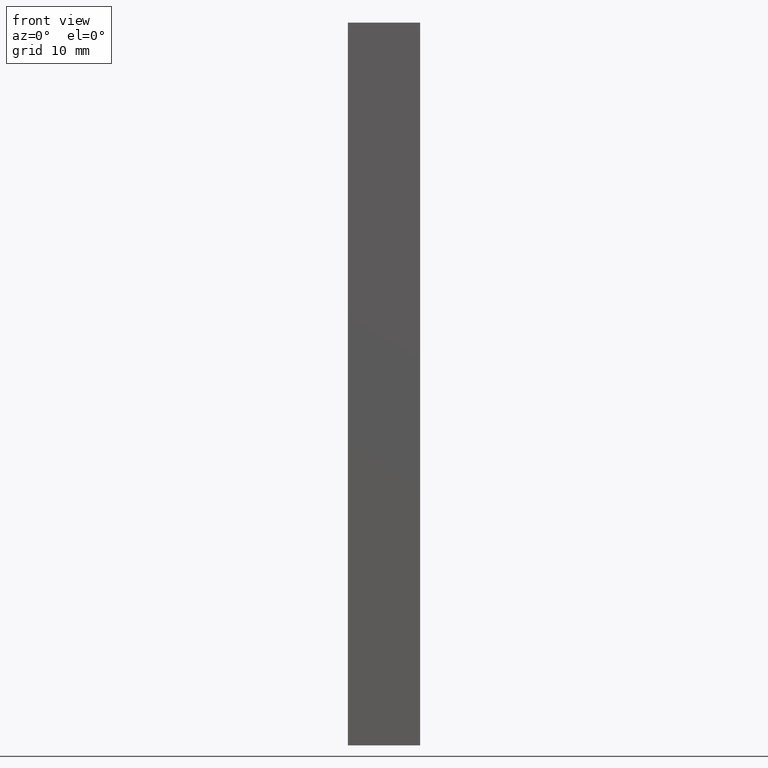
[diagram: clean part render]
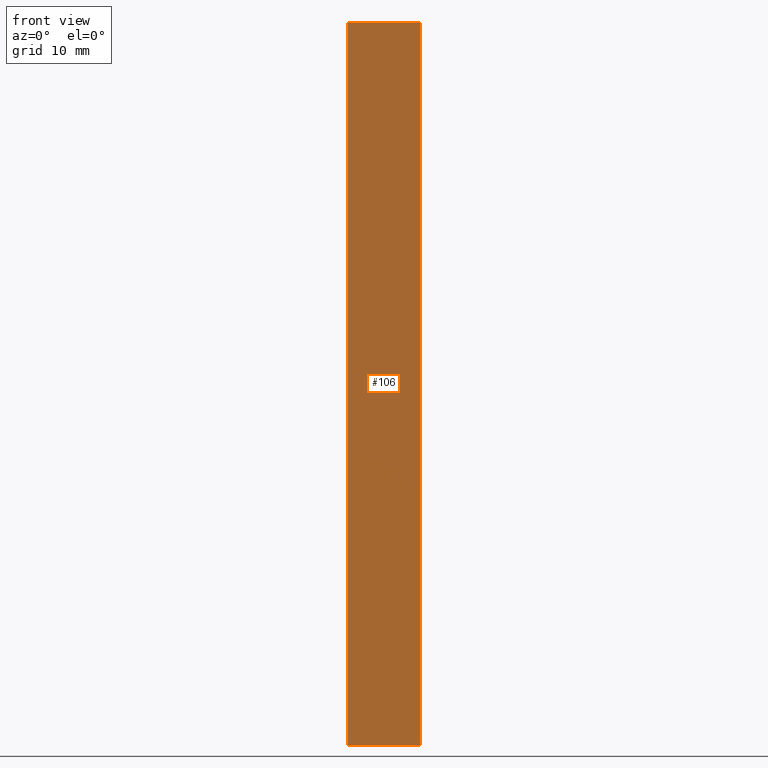
[diagram: same view with one face highlighted and labeled with its STEP entity id]
A machine part, front view. The second image highlights one B-rep face of the part: STEP entity #106.
In plain terms, the highlighted planar face has unit normal (0, -1, 0).
Its self-contained STEP definition (entity closure, byte-faithful):
#20=FACE_OUTER_BOUND('',#26,.T.);
#26=EDGE_LOOP('',(#91,#92,#93,#94));
#28=LINE('',#168,#40);
#34=LINE('',#180,#46);
#37=LINE('',#185,#49);
#38=LINE('',#187,#50);
#40=VECTOR('',#141,10.);
#46=VECTOR('',#149,10.);
#49=VECTOR('',#156,10.);
#50=VECTOR('',#159,10.);
#51=VERTEX_POINT('',#164);
#53=VERTEX_POINT('',#167);
#56=VERTEX_POINT('',#174);
#58=VERTEX_POINT('',#178);
#60=EDGE_CURVE('',#51,#53,#28,.T.);
#66=EDGE_CURVE('',#58,#56,#34,.T.);
#69=EDGE_CURVE('',#58,#53,#37,.T.);
#70=EDGE_CURVE('',#51,#56,#38,.T.);
#91=ORIENTED_EDGE('',*,*,#70,.T.);
#92=ORIENTED_EDGE('',*,*,#66,.F.);
#93=ORIENTED_EDGE('',*,*,#69,.T.);
#94=ORIENTED_EDGE('',*,*,#60,.F.);
#100=PLANE('',#135);
#106=ADVANCED_FACE('',(#20),#100,.T.);
#135=AXIS2_PLACEMENT_3D('',#188,#160,#161);
#141=DIRECTION('',(-1.,0.,0.));
#149=DIRECTION('',(1.,0.,0.));
#156=DIRECTION('',(0.,0.,-1.));
#159=DIRECTION('',(0.,0.,1.));
#160=DIRECTION('center_axis',(0.,-1.,0.));
#161=DIRECTION('ref_axis',(1.,0.,0.));
#164=CARTESIAN_POINT('',(5.,0.,-50.));
#167=CARTESIAN_POINT('',(-5.,0.,-50.));
#168=CARTESIAN_POINT('',(-5.,0.,-50.));
#174=CARTESIAN_POINT('',(5.,0.,50.));
#178=CARTESIAN_POINT('',(-5.,0.,50.));
#180=CARTESIAN_POINT('',(-5.,0.,50.));
#185=CARTESIAN_POINT('',(-5.,0.,0.));
#187=CARTESIAN_POINT('',(5.,0.,0.));
#188=CARTESIAN_POINT('Origin',(-5.,0.,0.));